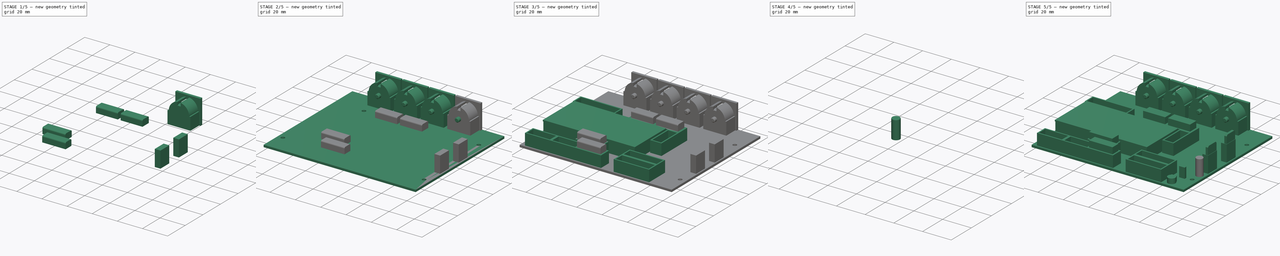
[diagram: build sequence overview — one tinted view per stage of 5, left to right]
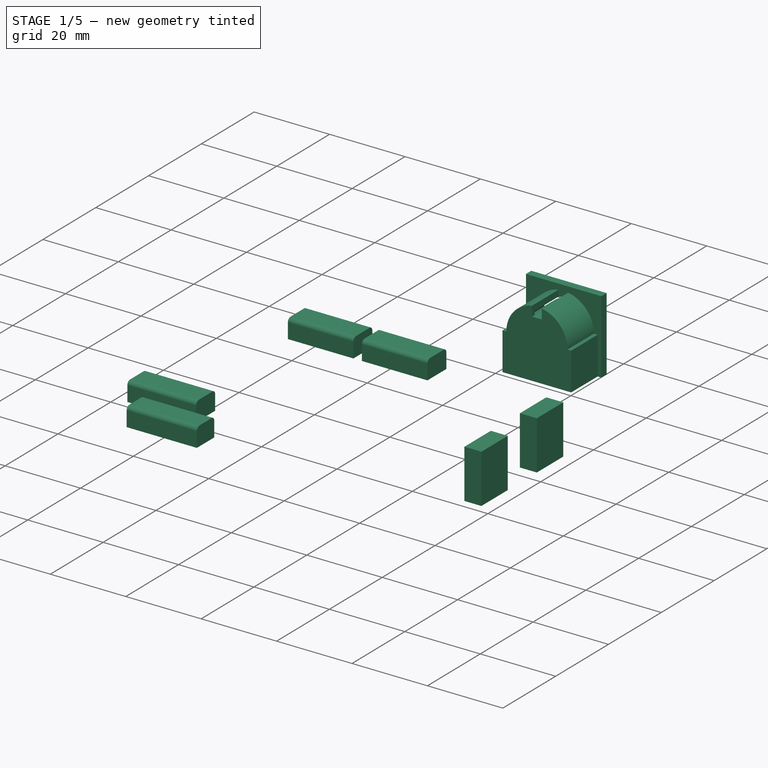
[diagram: stage 1 of 5 — iso view after this stage's code; geometry added in this stage tinted green]
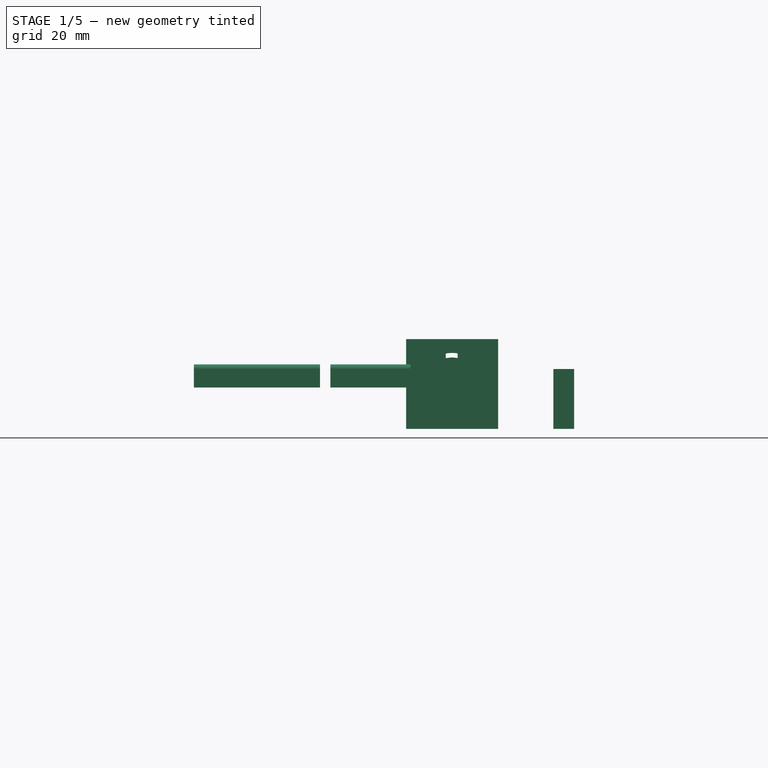
[diagram: stage 1 of 5 — front view after this stage's code; geometry added in this stage tinted green]
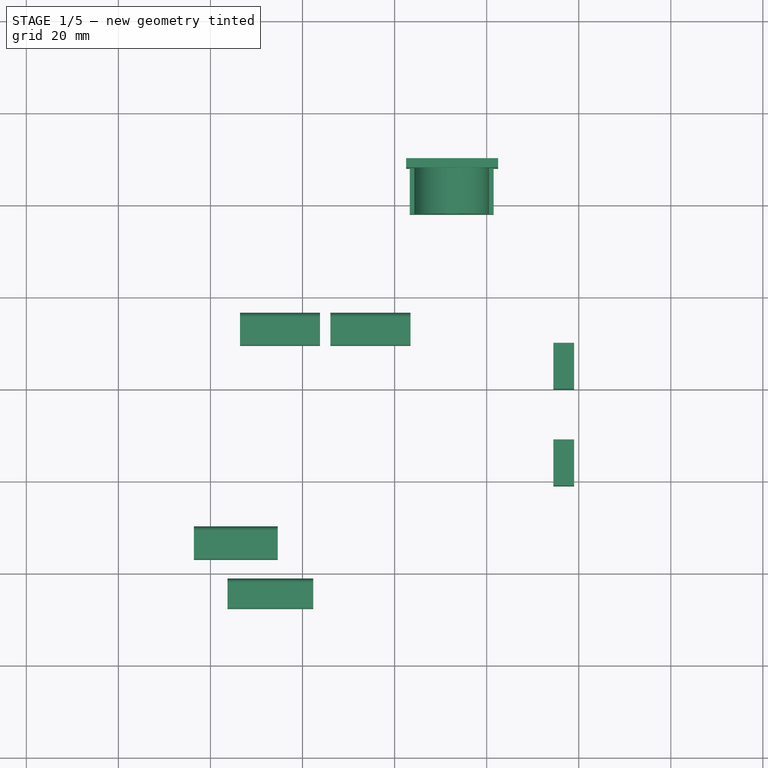
[diagram: stage 1 of 5 — top view after this stage's code; geometry added in this stage tinted green]
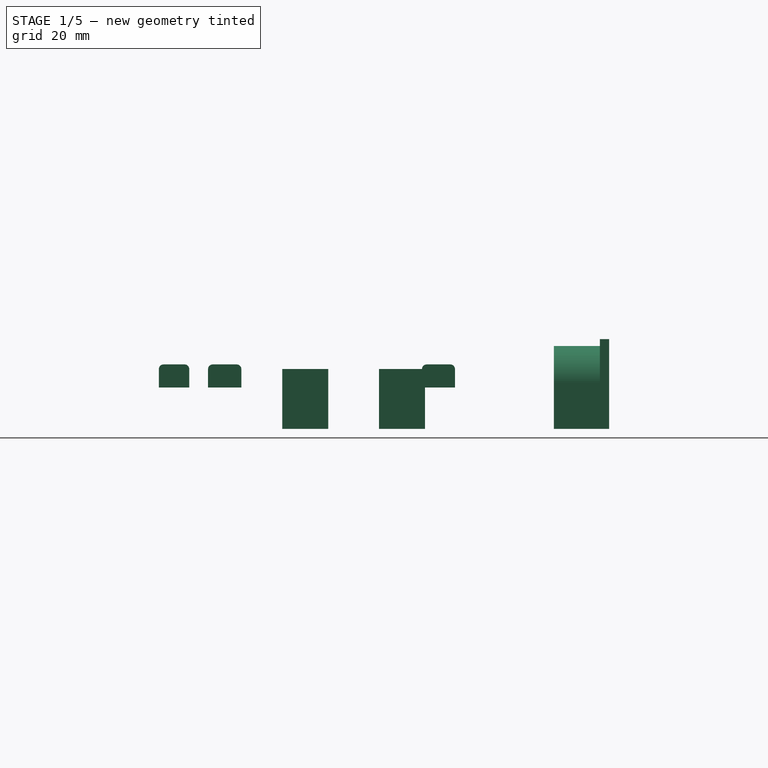
[diagram: stage 1 of 5 — right view after this stage's code; geometry added in this stage tinted green]
FCSTD DOCUMENT  (FreeCAD 0.18R15619 (Git))
Label: midibox
License: All rights reserved
LicenseURL: http://en.wikipedia.org/wiki/All_rights_reserved
objects: Sketcher::SketchObject×14, Part::Fuse×9, Part::Extrusion×8, PartDesign::Pad×5, PartDesign::Body×5, PartDesign::Pocket×2, PartDesign::ShapeBinder×2, PartDesign::Plane×2, Part::Fillet×2, PartDesign::Chamfer×1, Part::FeaturePython×1, Part::Chamfer×1
note: 59 computed .brp shape members not serialized (recipe doc carries the construction recipe); baked Part::Feature solids carry a one-line shape summary decoded from their .brp

FEATURE [PartDesign::Body] Body001  label="board"
  Group = -> [Sketch011,Pad010,Sketch012,Pocket001]
  Origin = -> Origin
  Tip = -> Pocket001
FEATURE [Sketcher::SketchObject] Sketch013
  MapMode = 5
  Support = -> [XY_Plane002]
  sketch-geometry (4):
    g0: LineSegment StartX=22.5 StartY=50 StartZ=0 EndX=42.5 EndY=50 EndZ=0
    g1: LineSegment StartX=42.5 StartY=50 StartZ=0 EndX=42.5 EndY=48 EndZ=0
    g2: LineSegment StartX=42.5 StartY=48 StartZ=0 EndX=22.5 EndY=48 EndZ=0
    g3: LineSegment StartX=22.5 StartY=48 StartZ=0 EndX=22.5 EndY=50 EndZ=0
  constraints (12):
    c: Coincident(g0,g1)
    c: Coincident(g1,g2)
    c: Coincident(g2,g3)
    c: Coincident(g3,g0)
    c: Horizontal(g0)
    c: Horizontal(g2)
    c: Vertical(g1)
    c: Vertical(g3)
    c: DistanceY(g-1,g0) = 50
    c: Distance(g0) = 20
    c: DistanceX(g-2,g0) = 42.5
    c: Distance(g3) = 2
FEATURE [PartDesign::Pad] Pad011
  Length = 19.5
  Length2 = 100
  Profile = -> Sketch013
  Type = 0
FEATURE [Sketcher::SketchObject] Sketch014
  ExternalGeometry = -> [Pad011]
  MapMode = 5
  Placement = pos=(0,48,0) rot=(1,0,0;1.5708rad)
  Support = -> [Pad011]
  sketch-geometry (10):
    g0: LineSegment StartX=41.5 StartY=0 StartZ=0 EndX=23.3 EndY=0 EndZ=0
    g1: LineSegment StartX=31.1 StartY=18 StartZ=0 EndX=31.1 EndY=15.4 EndZ=0
    g2: LineSegment StartX=31.1 StartY=15.4 StartZ=0 EndX=33.7 EndY=15.4 EndZ=0
    g3: LineSegment StartX=33.7 StartY=15.4 StartZ=0 EndX=33.7 EndY=18 EndZ=0
    g4: ArcOfCircle CenterX=32.4 CenterY=10.005 CenterZ=0 NormalX=0 NormalY=0 NormalZ=1 AngleXU=0 Radius=8.1 StartAngle=1.73199 EndAngle=3.14159
    g5: ArcOfCircle CenterX=32.4 CenterY=10.005 CenterZ=0 NormalX=0 NormalY=0 NormalZ=1 AngleXU=0 Radius=8.1 StartAngle=0 EndAngle=1.40961
    g6: LineSegment StartX=23.3 StartY=0 StartZ=0 EndX=23.3 EndY=10.005 EndZ=0
    g7: LineSegment StartX=23.3 StartY=10.005 StartZ=0 EndX=24.3 EndY=10.005 EndZ=0
    g8: LineSegment StartX=40.5 StartY=10.005 StartZ=0 EndX=41.5 EndY=10.005 EndZ=0
    g9: LineSegment StartX=41.5 StartY=10.005 StartZ=0 EndX=41.5 EndY=0 EndZ=0
  constraints (31):
    c: Horizontal(g0)
    c: PointOnObject(g0,g-1)
    c: Vertical(g1)
    c: Coincident(g1,g2)
    c: Horizontal(g2)
    c: Coincident(g2,g3)
    c: Coincident(g5,g3)
    c: Coincident(g4,g5)
    c: Coincident(g1,g4)
    c: Horizontal(g4,g4)
    c: Horizontal(g4,g5)
    c: Vertical(g3)
    c: Equal(g5,g4)
    c: Horizontal(g3,g1)
    c: Vertical(g6)
    c: Coincident(g6,g7)
    c: Coincident(g8,g9)
    c: Coincident(g5,g8)
    c: Coincident(g4,g7)
    c: Horizontal(g8)
    c: Horizontal(g7)
    c: Vertical(g9)
    c: Coincident(g0,g9)
    c: Coincident(g0,g6)
    c: Distance(g2) = 2.6
    c: Equal(g2,g3)
    c: Distance(g0) = 18.2
    c: Distance(g7) = 1
    c: Equal(g8,g7)
    c: Distance(g3,g-3) = 1.5
    c: Distance(g8,g-4) = 1
FEATURE [PartDesign::Pad] Pad012
  BaseFeature = -> Pad011
  Length = 10
  Length2 = 100
  Profile = -> Sketch014
  Type = 0
FEATURE [Sketcher::SketchObject] Sketch015
  ExternalGeometry = -> [Pad012]
  MapMode = 5
  Placement = pos=(0,50,0) rot=(0,0.707107,0.707107;3.14159rad)
  Support = -> [Pad012]
  sketch-geometry (4):
    g0: LineSegment [constr] StartX=-22.5 StartY=19.5 StartZ=0 EndX=-32.5 EndY=9.5 EndZ=0
    g1: LineSegment [constr] StartX=-32.5 StartY=9.5 StartZ=0 EndX=-42.5 EndY=19.5 EndZ=0
    g2: Circle CenterX=-32.5 CenterY=9.5 CenterZ=0 NormalX=0 NormalY=0 NormalZ=1 AngleXU=0 Radius=7
    g3: Circle CenterX=-32.5 CenterY=9.5 CenterZ=0 NormalX=0 NormalY=0 NormalZ=1 AngleXU=0 Radius=6
  constraints (9):
    c: Coincident(g0,g-3)
    c: Angle(g-3,g0) = 0.785398
    c: Coincident(g1,g0)
    c: Coincident(g1,g-3)
    c: Angle(g1,g-3) = 0.785398
    c: Coincident(g2,g0)
    c: Coincident(g3,g0)
    c: Radius(g2) = 7
    c: Radius(g3) = 6
FEATURE [PartDesign::Pocket] Pocket002
  BaseFeature = -> Pad012
  Length = 11
  Length2 = 100
  Profile = -> Sketch015
  Type = 0
FEATURE [PartDesign::ShapeBinder] CopyFusion002
  Placement = pos=(0,0,9) rot=(0,0,1;0rad)
  TraceSupport = false
FEATURE [PartDesign::Plane] DatumPlane001
  Length = 24
  MapMode = 5
  Placement = pos=(0,0,9) rot=(0,0,1;0rad)
  ResizeMode = 0
  Support = -> [CopyFusion002]
  Width = 24
FEATURE [Sketcher::SketchObject] Sketch019
  MapMode = 5
  Placement = pos=(0,0,9) rot=(0,0,1;0rad)
  Support = -> [DatumPlane001]
  sketch-geometry (16):
    g0: LineSegment StartX=-13.5794 StartY=16.512 StartZ=0 EndX=3.80866 EndY=16.512 EndZ=0
    g1: LineSegment StartX=3.80866 StartY=16.512 StartZ=0 EndX=3.80866 EndY=9.35732 EndZ=0
    g2: LineSegment StartX=3.80866 StartY=9.35732 StartZ=0 EndX=-13.5794 EndY=9.35732 EndZ=0
    g3: LineSegment StartX=-13.5794 StartY=9.35732 StartZ=0 EndX=-13.5794 EndY=16.512 EndZ=0
    g4: LineSegment StartX=6.05382 StartY=16.512 StartZ=0 EndX=23.4419 EndY=16.512 EndZ=0
    g5: LineSegment StartX=23.4419 StartY=16.512 StartZ=0 EndX=23.4419 EndY=9.35732 EndZ=0
    g6: LineSegment StartX=23.4419 StartY=9.35732 StartZ=0 EndX=6.05382 EndY=9.35732 EndZ=0
    g7: LineSegment StartX=6.05382 StartY=9.35732 StartZ=0 EndX=6.05382 EndY=16.512 EndZ=0
    g8: LineSegment StartX=-23.6037 StartY=-29.8951 StartZ=0 EndX=-5.3807 EndY=-29.8951 EndZ=0
    g9: LineSegment StartX=-5.3807 StartY=-29.8951 StartZ=0 EndX=-5.3807 EndY=-37.1215 EndZ=0
    g10: LineSegment StartX=-5.3807 StartY=-37.1215 StartZ=0 EndX=-23.6037 EndY=-37.1215 EndZ=0
    g11: LineSegment StartX=-23.6037 StartY=-37.1215 StartZ=0 EndX=-23.6037 EndY=-29.8951 EndZ=0
    g12: LineSegment StartX=-16.2988 StartY=-41.206 StartZ=0 EndX=2.31695 EndY=-41.206 EndZ=0
    g13: LineSegment StartX=2.31695 StartY=-41.206 StartZ=0 EndX=2.31695 EndY=-47.804 EndZ=0
    g14: LineSegment StartX=2.31695 StartY=-47.804 StartZ=0 EndX=-16.2988 EndY=-47.804 EndZ=0
    g15: LineSegment StartX=-16.2988 StartY=-47.804 StartZ=0 EndX=-16.2988 EndY=-41.206 EndZ=0
  constraints (35):
    c: Coincident(g0,g1)
    c: Coincident(g1,g2)
    c: Coincident(g2,g3)
    c: Coincident(g3,g0)
    c: Horizontal(g0)
    c: Horizontal(g2)
    c: Vertical(g1)
    c: Vertical(g3)
    c: Coincident(g4,g5)
    c: Coincident(g5,g6)
    c: Coincident(g6,g7)
    c: Coincident(g7,g4)
    c: Horizontal(g4)
    c: Horizontal(g6)
    c: Vertical(g5)
    c: Vertical(g7)
    c: Equal(g4,g0)
    c: Equal(g7,g1)
    c: Horizontal(g0,g4)
    c: Coincident(g8,g9)
    c: Coincident(g9,g10)
    c: Coincident(g10,g11)
    c: Coincident(g11,g8)
    c: Horizontal(g8)
    c: Horizontal(g10)
    c: Vertical(g9)
    c: Vertical(g11)
    c: Coincident(g12,g13)
    c: Coincident(g13,g14)
    c: Coincident(g14,g15)
    c: Coincident(g15,g12)
    c: Horizontal(g12)
    c: Horizontal(g14)
    c: Vertical(g13)
    c: Vertical(g15)
FEATURE [PartDesign::Body] Body005
  Group = -> [DatumPlane001,CopyFusion002,Sketch019]
  Origin = -> Origin005
FEATURE [Part::Extrusion] Extrude001
  Base = -> Sketch019
  Dir = (0,0,1)
  DirMode = 2
  FaceMakerClass = Part::FaceMakerBullseye
  LengthFwd = 5
  LengthRev = 0
  Solid = true
  Symmetric = false
FEATURE [Part::Fillet] Fillet  label="sockets-gray"
  Base = -> Extrude001
  Edges = 8 edges r=1: [Edge4,Edge10,Edge16,Edge22,Edge28,Edge34,Edge40,Edge46]
FEATURE [Sketcher::SketchObject] Sketch020
  sketch-geometry (8):
    g0: LineSegment StartX=54.5 StartY=10 StartZ=0 EndX=59 EndY=10 EndZ=0
    g1: LineSegment StartX=59 StartY=10 StartZ=0 EndX=59 EndY=0 EndZ=0
    g2: LineSegment StartX=59 StartY=0 StartZ=0 EndX=54.5 EndY=0 EndZ=0
    g3: LineSegment StartX=54.5 StartY=0 StartZ=0 EndX=54.5 EndY=10 EndZ=0
    g4: LineSegment StartX=54.5 StartY=-11 StartZ=0 EndX=59 EndY=-11 EndZ=0
    g5: LineSegment StartX=59 StartY=-11 StartZ=0 EndX=59 EndY=-21 EndZ=0
    g6: LineSegment StartX=59 StartY=-21 StartZ=0 EndX=54.5 EndY=-21 EndZ=0
    g7: LineSegment StartX=54.5 StartY=-21 StartZ=0 EndX=54.5 EndY=-11 EndZ=0
  constraints (24):
    c: Coincident(g0,g1)
    c: Coincident(g1,g2)
    c: Coincident(g2,g3)
    c: Coincident(g3,g0)
    c: Horizontal(g0)
    c: Horizontal(g2)
    c: Vertical(g1)
    c: Vertical(g3)
    c: Coincident(g4,g5)
    c: Coincident(g5,g6)
    c: Coincident(g6,g7)
    c: Coincident(g7,g4)
    c: Horizontal(g4)
    c: Horizontal(g6)
    c: Vertical(g5)
    c: Vertical(g7)
    c: DistanceY(g-1,g4) = -11
    c: PointOnObject(g1,g-1)
    c: Vertical(g1,g4)
    c: Equal(g1,g5)
    c: Equal(g0,g4)
    c: Distance(g1) = 10
    c: DistanceX(g-2,g1) = 59
    c: Distance(g0) = 4.5
FEATURE [Part::Extrusion] Extrude003  label="alim-black"
  Base = -> Sketch020
  Dir = (0,0,1)
  DirMode = 2
  FaceMakerClass = Part::FaceMakerBullseye
  LengthFwd = 13
  LengthRev = 0
  Solid = true
  Symmetric = false
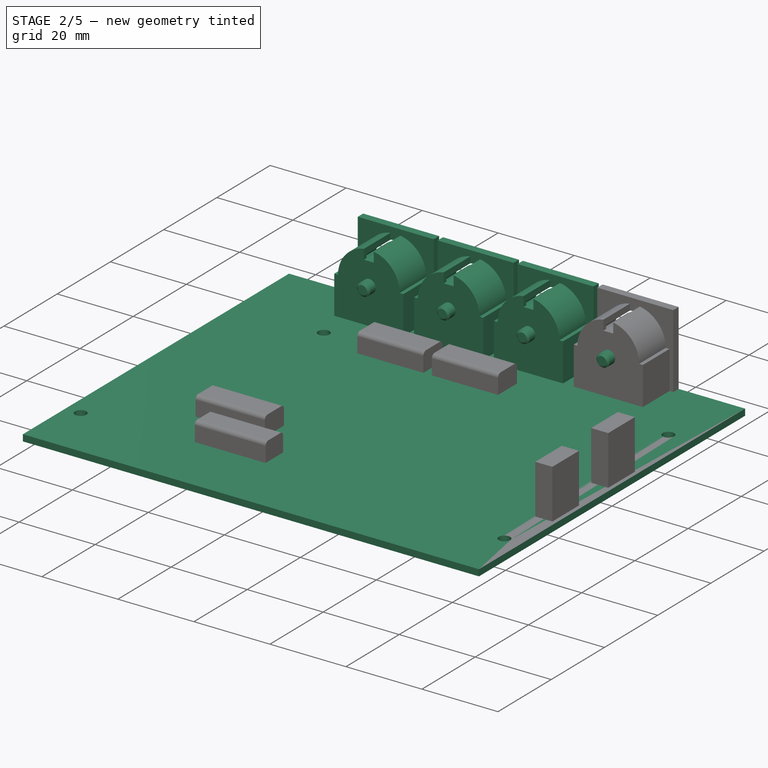
[diagram: stage 2 of 5 — iso view after this stage's code; geometry added in this stage tinted green]
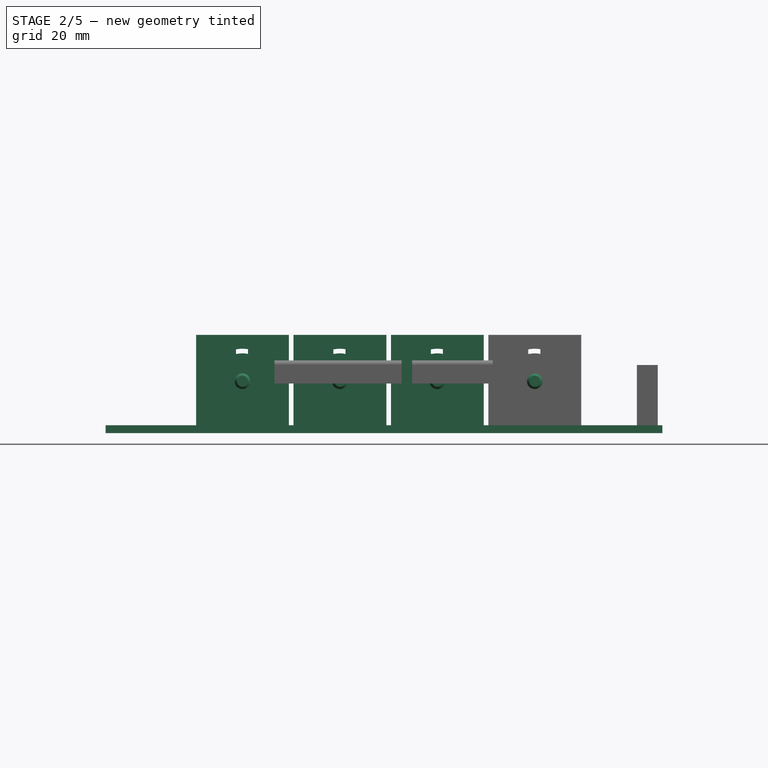
[diagram: stage 2 of 5 — front view after this stage's code; geometry added in this stage tinted green]
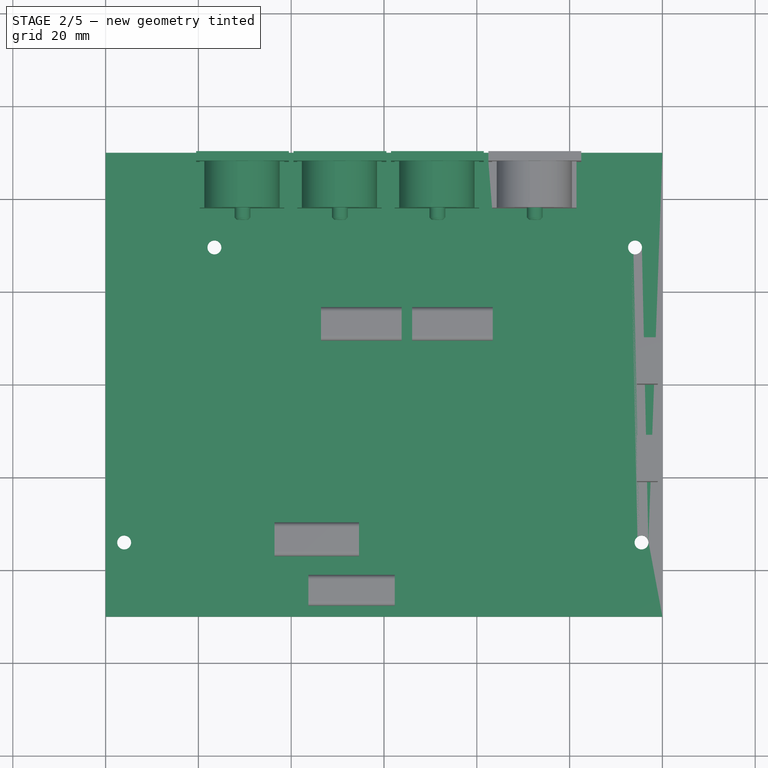
[diagram: stage 2 of 5 — top view after this stage's code; geometry added in this stage tinted green]
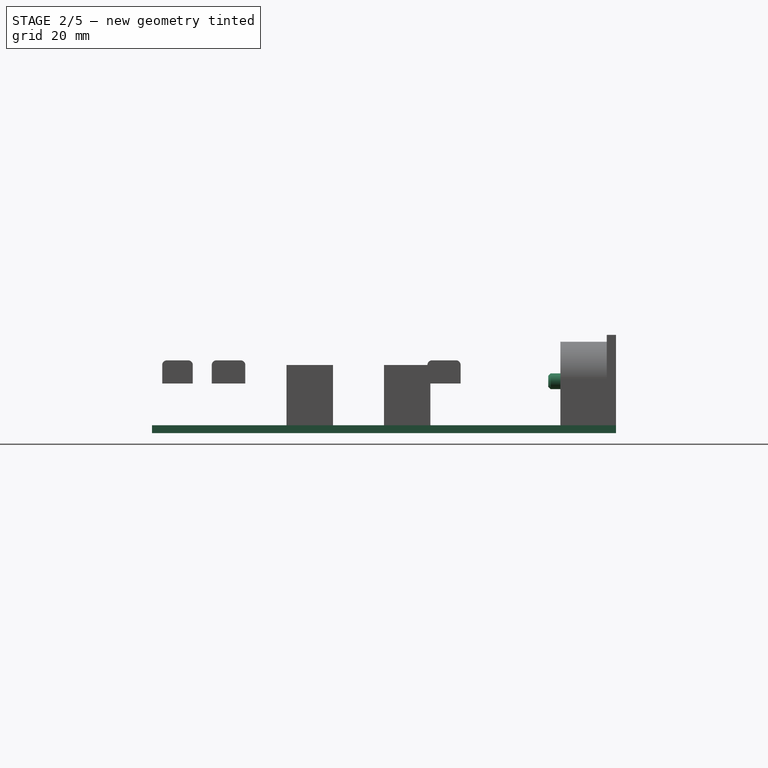
[diagram: stage 2 of 5 — right view after this stage's code; geometry added in this stage tinted green]
FEATURE [Sketcher::SketchObject] Sketch011
  MapMode = 5
  Support = -> [XY_Plane]
  sketch-geometry (4):
    g0: LineSegment StartX=-60 StartY=50 StartZ=0 EndX=60 EndY=50 EndZ=0
    g1: LineSegment StartX=60 StartY=50 StartZ=0 EndX=60 EndY=-50 EndZ=0
    g2: LineSegment StartX=60 StartY=-50 StartZ=0 EndX=-60 EndY=-50 EndZ=0
    g3: LineSegment StartX=-60 StartY=-50 StartZ=0 EndX=-60 EndY=50 EndZ=0
  constraints (12):
    c: Coincident(g0,g1)
    c: Coincident(g1,g2)
    c: Coincident(g2,g3)
    c: Coincident(g3,g0)
    c: Horizontal(g0)
    c: Horizontal(g2)
    c: Vertical(g1)
    c: Vertical(g3)
    c: Distance(g0) = 120
    c: Distance(g1) = 100
    c: DistanceX(g-2,g0) = 60
    c: DistanceY(g-1,g0) = 50
FEATURE [PartDesign::Pad] Pad010
  Length = 1.7
  Length2 = 100
  Profile = -> Sketch011
  Reversed = true
  Type = 0
FEATURE [Sketcher::SketchObject] Sketch012
  ExternalGeometry = -> [Pad010]
  MapMode = 5
  Support = -> [XY_Plane]
  sketch-geometry (4):
    g0: Circle CenterX=54.1 CenterY=29.6 CenterZ=0 NormalX=0 NormalY=0 NormalZ=1 AngleXU=0 Radius=1.5
    g1: Circle CenterX=-36.55 CenterY=29.6 CenterZ=0 NormalX=0 NormalY=0 NormalZ=1 AngleXU=0 Radius=1.5
    g2: Circle CenterX=-56 CenterY=-34 CenterZ=0 NormalX=0 NormalY=0 NormalZ=1 AngleXU=0 Radius=1.5
    g3: Circle CenterX=55.5 CenterY=-34 CenterZ=0 NormalX=0 NormalY=0 NormalZ=1 AngleXU=0 Radius=1.5
  constraints (12):
    c: Radius(g3) = 1.5
    c: Equal(g3,g0)
    c: Equal(g3,g1)
    c: Equal(g3,g2)
    c: Distance(g0,g-4) = 5.9
    c: Distance(g0,g-3) = 79.6
    c: Distance(g2,g-4) = 116
    c: Distance(g3,g-3) = 16
    c: Distance(g3,g-4) = 4.5
    c: Distance(g1,g-4) = 96.55
    c: Horizontal(g1,g0)
    c: Horizontal(g2,g3)
FEATURE [PartDesign::Pocket] Pocket001
  BaseFeature = -> Pad010
  Length = 5
  Length2 = 100
  Profile = -> Sketch012
  Type = 0
FEATURE [Sketcher::SketchObject] Sketch016
  ExternalGeometry = -> [Pocket002]
  MapMode = 5
  Placement = pos=(0,38,-9.5e-15) rot=(1,0,0;1.5708rad)
  Support = -> [Pocket002]
  sketch-geometry (1):
    g0: Circle CenterX=32.5 CenterY=9.5 CenterZ=0 NormalX=0 NormalY=0 NormalZ=1 AngleXU=0 Radius=1.7
  constraints (2):
    c: Coincident(g0,g-3)
    c: Radius(g0) = 1.7
FEATURE [PartDesign::Pad] Pad013
  BaseFeature = -> Pocket002
  Length = 2.6
  Length2 = 100
  Profile = -> Sketch016
  Type = 0
FEATURE [PartDesign::Chamfer] Chamfer001
  Base = -> Pad013 [Edge64]
  BaseFeature = -> Pad013
  Size = 0.5
FEATURE [PartDesign::Body] Body002  label="midi"
  Group = -> [Sketch013,Pad011,Sketch014,Pad012,Sketch015,Pocket002,Sketch016,Pad013,Chamfer001]
  Origin = -> Origin002
  Tip = -> Chamfer001
FEATURE [Part::FeaturePython] Array  label="midis"  # Draft array (typed FeaturePython)
  Angle = 360
  ArrayType = 0
  Axis = (0,0,1)
  Base = -> Body002
  Center = (0,0,0)
  Fuse = false
  IntervalAxis = (0,0,0)
  IntervalX = (-21,0,0)
  IntervalY = (0,1,0)
  IntervalZ = (0,0,0)
  NumberPolar = 1
  NumberX = 4
  NumberY = 1
  NumberZ = 1
FEATURE [PartDesign::Body] Body004  label="lpc"
  Group = -> [DatumPlane,CopyExtrude,Sketch018,Pad014]
  Origin = -> Origin004
  Tip = -> Pad014
FEATURE [Part::Fuse] Fusion  label="Fusion-board-midis"
  Base = -> Body001
  Tool = -> Array
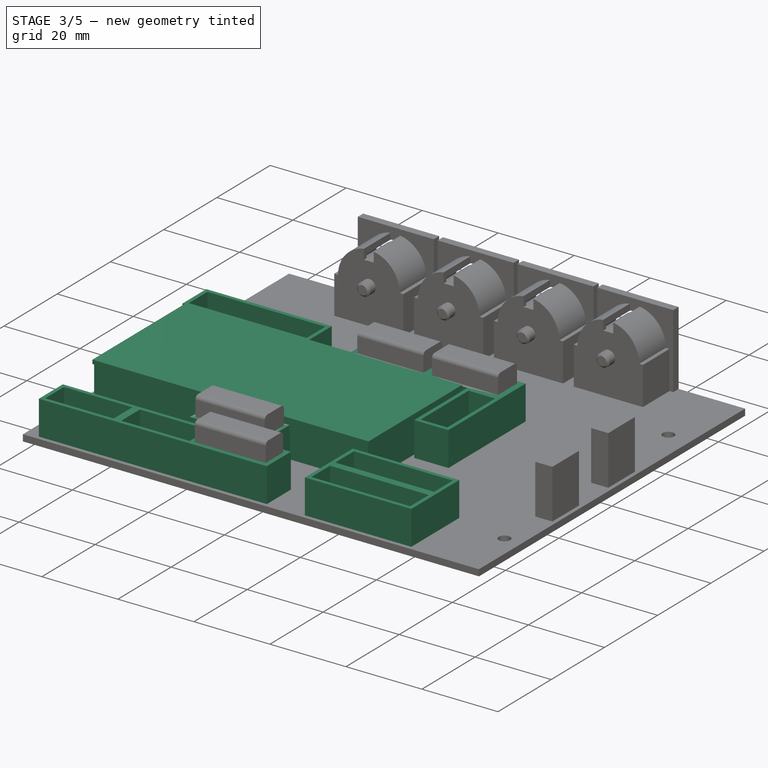
[diagram: stage 3 of 5 — iso view after this stage's code; geometry added in this stage tinted green]
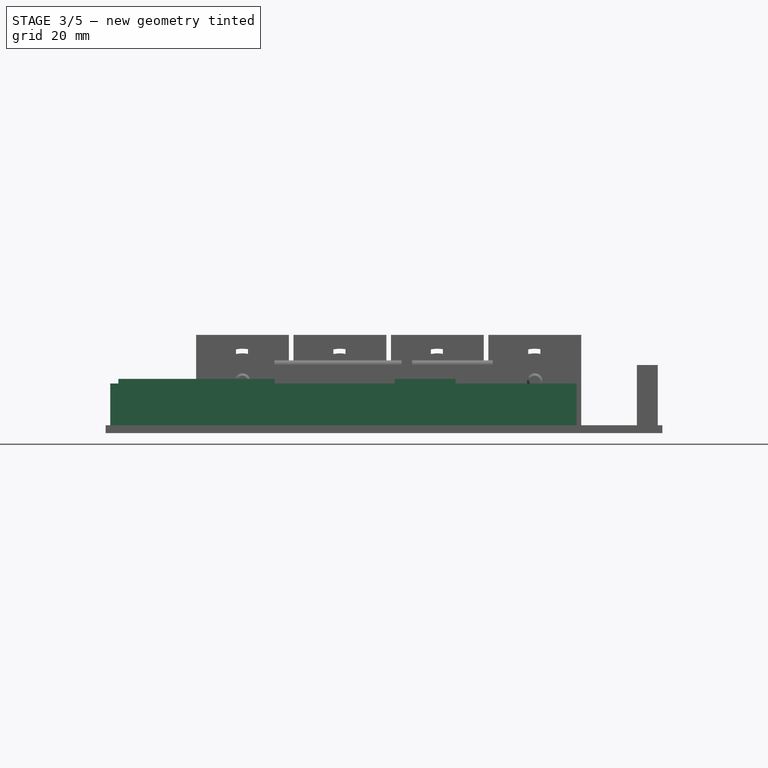
[diagram: stage 3 of 5 — front view after this stage's code; geometry added in this stage tinted green]
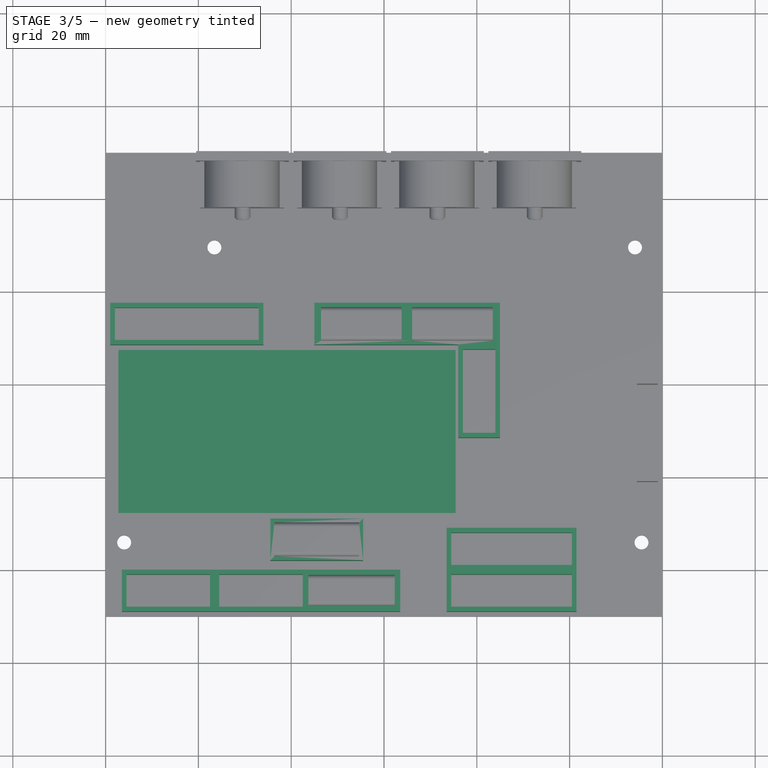
[diagram: stage 3 of 5 — top view after this stage's code; geometry added in this stage tinted green]
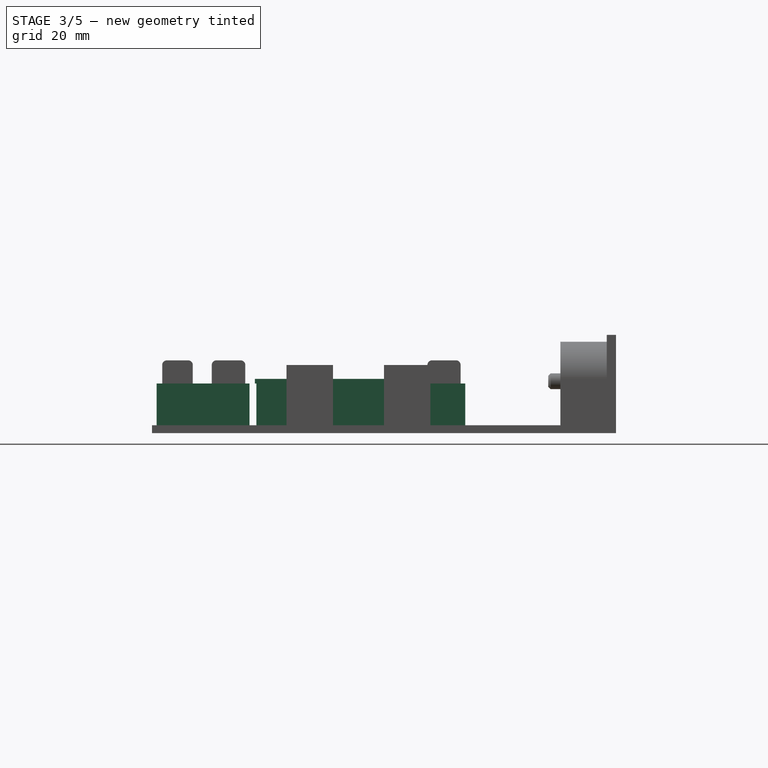
[diagram: stage 3 of 5 — right view after this stage's code; geometry added in this stage tinted green]
FEATURE [Sketcher::SketchObject] Sketch017
  MapMode = 5
  Support = -> [XY_Plane003]
  sketch-geometry (90):
    g0: LineSegment [constr] StartX=-59 StartY=17.5 StartZ=0 EndX=-26 EndY=17.5 EndZ=0
    g1: LineSegment [constr] StartX=-26 StartY=17.5 StartZ=0 EndX=-26 EndY=8.5 EndZ=0
    g2: LineSegment [constr] StartX=-26 StartY=8.5 StartZ=0 EndX=-59 EndY=8.5 EndZ=0
    g3: LineSegment [constr] StartX=-59 StartY=8.5 StartZ=0 EndX=-59 EndY=17.5 EndZ=0
    g4: LineSegment [constr] StartX=-15 StartY=17.5 StartZ=0 EndX=5 EndY=17.5 EndZ=0
    g5: LineSegment [constr] StartX=5 StartY=17.5 StartZ=0 EndX=5 EndY=8.5 EndZ=0
    g6: LineSegment [constr] StartX=5 StartY=8.5 StartZ=0 EndX=-15 EndY=8.5 EndZ=0
    g7: LineSegment [constr] StartX=-15 StartY=8.5 StartZ=0 EndX=-15 EndY=17.5 EndZ=0
    g8: LineSegment [constr] StartX=5 StartY=17.5 StartZ=0 EndX=25 EndY=17.5 EndZ=0
    g9: LineSegment [constr] StartX=25 StartY=17.5 StartZ=0 EndX=25 EndY=8.5 EndZ=0
    g10: LineSegment [constr] StartX=25 StartY=8.5 StartZ=0 EndX=5 EndY=8.5 EndZ=0
    g11: LineSegment [constr] StartX=5 StartY=8.5 StartZ=0 EndX=5 EndY=17.5 EndZ=0
    g12: LineSegment [constr] StartX=25 StartY=8.5 StartZ=0 EndX=16 EndY=8.5 EndZ=0
    g13: LineSegment [constr] StartX=16 StartY=8.5 StartZ=0 EndX=16 EndY=-11.5 EndZ=0
    g14: LineSegment [constr] StartX=16 StartY=-11.5 StartZ=0 EndX=25 EndY=-11.5 EndZ=0
    g15: LineSegment [constr] StartX=25 StartY=-11.5 StartZ=0 EndX=25 EndY=8.5 EndZ=0
    g16: LineSegment [constr] StartX=13.5 StartY=-31 StartZ=0 EndX=41.5 EndY=-31 EndZ=0
    g17: LineSegment [constr] StartX=41.5 StartY=-31 StartZ=0 EndX=41.5 EndY=-40 EndZ=0
    g18: LineSegment [constr] StartX=41.5 StartY=-40 StartZ=0 EndX=13.5 EndY=-40 EndZ=0
    g19: LineSegment [constr] StartX=13.5 StartY=-40 StartZ=0 EndX=13.5 EndY=-31 EndZ=0
    g20: LineSegment [constr] StartX=13.5 StartY=-40 StartZ=0 EndX=41.5 EndY=-40 EndZ=0
    g21: LineSegment [constr] StartX=41.5 StartY=-40 StartZ=0 EndX=41.5 EndY=-49 EndZ=0
    g22: LineSegment [constr] StartX=41.5 StartY=-49 StartZ=0 EndX=13.5 EndY=-49 EndZ=0
    g23: LineSegment [constr] StartX=13.5 StartY=-49 StartZ=0 EndX=13.5 EndY=-40 EndZ=0
    g24: LineSegment [constr] StartX=-24.5 StartY=-29 StartZ=0 EndX=-4.5 EndY=-29 EndZ=0
    g25: LineSegment [constr] StartX=-4.5 StartY=-29 StartZ=0 EndX=-4.5 EndY=-38 EndZ=0
    g26: LineSegment [constr] StartX=-4.5 StartY=-38 StartZ=0 EndX=-24.5 EndY=-38 EndZ=0
    g27: LineSegment [constr] StartX=-24.5 StartY=-38 StartZ=0 EndX=-24.5 EndY=-29 EndZ=0
    g28: LineSegment [constr] StartX=-56.5 StartY=-40 StartZ=0 EndX=-36.5 EndY=-40 EndZ=0
    g29: LineSegment [constr] StartX=-36.5 StartY=-40 StartZ=0 EndX=-36.5 EndY=-49 EndZ=0
    g30: LineSegment [constr] StartX=-36.5 StartY=-49 StartZ=0 EndX=-56.5 EndY=-49 EndZ=0
    g31: LineSegment [constr] StartX=-56.5 StartY=-49 StartZ=0 EndX=-56.5 EndY=-40 EndZ=0
    g32: LineSegment [constr] StartX=-36.5 StartY=-40 StartZ=0 EndX=-16.5 EndY=-40 EndZ=0
    g33: LineSegment [constr] StartX=-16.5 StartY=-40 StartZ=0 EndX=-16.5 EndY=-49 EndZ=0
    g34: LineSegment [constr] StartX=-16.5 StartY=-49 StartZ=0 EndX=-36.5 EndY=-49 EndZ=0
    g35: LineSegment [constr] StartX=-36.5 StartY=-49 StartZ=0 EndX=-36.5 EndY=-40 EndZ=0
    g36: LineSegment [constr] StartX=-16.5 StartY=-40 StartZ=0 EndX=3.5 EndY=-40 EndZ=0
    g37: LineSegment [constr] StartX=3.5 StartY=-40 StartZ=0 EndX=3.5 EndY=-49 EndZ=0
    g38: LineSegment [constr] StartX=3.5 StartY=-49 StartZ=0 EndX=-16.5 EndY=-49 EndZ=0
    g39: LineSegment [constr] StartX=-16.5 StartY=-49 StartZ=0 EndX=-16.5 EndY=-40 EndZ=0
    g40: LineSegment StartX=-59 StartY=17.5 StartZ=0 EndX=-26 EndY=17.5 EndZ=0
    g41: LineSegment StartX=-26 StartY=17.5 StartZ=0 EndX=-26 EndY=8.5 EndZ=0
    g42: LineSegment StartX=-26 StartY=8.5 StartZ=0 EndX=-59 EndY=8.5 EndZ=0
    g43: LineSegment StartX=-59 StartY=8.5 StartZ=0 EndX=-59 EndY=17.5 EndZ=0
    g44: LineSegment StartX=-15 StartY=8.5 StartZ=0 EndX=-15 EndY=17.5 EndZ=0
    g45: LineSegment StartX=-15 StartY=17.5 StartZ=0 EndX=25 EndY=17.5 EndZ=0
    g46: LineSegment StartX=25 StartY=17.5 StartZ=0 EndX=25 EndY=-11.5 EndZ=0
    g47: LineSegment StartX=25 StartY=-11.5 StartZ=0 EndX=16 EndY=-11.5 EndZ=0
    g48: LineSegment StartX=16 StartY=-11.5 StartZ=0 EndX=16 EndY=8.5 EndZ=0
    g49: LineSegment StartX=16 StartY=8.5 StartZ=0 EndX=-15 EndY=8.5 EndZ=0
    g50: LineSegment StartX=-58 StartY=16.5 StartZ=0 EndX=-27 EndY=16.5 EndZ=0
    g51: LineSegment StartX=-27 StartY=16.5 StartZ=0 EndX=-27 EndY=9.5 EndZ=0
    g52: LineSegment StartX=-27 StartY=9.5 StartZ=0 EndX=-58 EndY=9.5 EndZ=0
    g53: LineSegment StartX=-58 StartY=9.5 StartZ=0 EndX=-58 EndY=16.5 EndZ=0
    g54: LineSegment StartX=17 StartY=7.5 StartZ=0 EndX=24 EndY=7.5 EndZ=0
    g55: LineSegment StartX=24 StartY=7.5 StartZ=0 EndX=24 EndY=-10.5 EndZ=0
    g56: LineSegment StartX=24 StartY=-10.5 StartZ=0 EndX=17 EndY=-10.5 EndZ=0
    g57: LineSegment StartX=17 StartY=-10.5 StartZ=0 EndX=17 EndY=7.5 EndZ=0
    g58: LineSegment StartX=-56.5 StartY=-40 StartZ=0 EndX=3.5 EndY=-40 EndZ=0
    g59: LineSegment StartX=3.5 StartY=-40 StartZ=0 EndX=3.5 EndY=-49 EndZ=0
    g60: LineSegment StartX=3.5 StartY=-49 StartZ=0 EndX=-56.5 EndY=-49 EndZ=0
    g61: LineSegment StartX=-56.5 StartY=-49 StartZ=0 EndX=-56.5 EndY=-40 EndZ=0
    g62: LineSegment StartX=-24.5 StartY=-29 StartZ=0 EndX=-4.5 EndY=-29 EndZ=0
    g63: LineSegment StartX=-4.5 StartY=-29 StartZ=0 EndX=-4.5 EndY=-38 EndZ=0
    g64: LineSegment StartX=-4.5 StartY=-38 StartZ=0 EndX=-24.5 EndY=-38 EndZ=0
    g65: LineSegment StartX=-24.5 StartY=-38 StartZ=0 EndX=-24.5 EndY=-29 EndZ=0
    g66: LineSegment StartX=13.5 StartY=-31 StartZ=0 EndX=41.5 EndY=-31 EndZ=0
    g67: LineSegment StartX=41.5 StartY=-31 StartZ=0 EndX=41.5 EndY=-49 EndZ=0
    g68: LineSegment StartX=41.5 StartY=-49 StartZ=0 EndX=13.5 EndY=-49 EndZ=0
    g69: LineSegment StartX=13.5 StartY=-49 StartZ=0 EndX=13.5 EndY=-31 EndZ=0
    g70: LineSegment StartX=-55.5 StartY=-41 StartZ=0 EndX=-37.5 EndY=-41 EndZ=0
    g71: LineSegment StartX=-37.5 StartY=-41 StartZ=0 EndX=-37.5 EndY=-48 EndZ=0
    g72: LineSegment StartX=-37.5 StartY=-48 StartZ=0 EndX=-55.5 EndY=-48 EndZ=0
    g73: LineSegment StartX=-55.5 StartY=-48 StartZ=0 EndX=-55.5 EndY=-41 EndZ=0
    g74: LineSegment StartX=-35.5 StartY=-41 StartZ=0 EndX=-17.5 EndY=-41 EndZ=0
    g75: LineSegment StartX=-17.5 StartY=-41 StartZ=0 EndX=-17.5 EndY=-48 EndZ=0
    g76: LineSegment StartX=-17.5 StartY=-48 StartZ=0 EndX=-35.5 EndY=-48 EndZ=0
    g77: LineSegment StartX=-35.5 StartY=-48 StartZ=0 EndX=-35.5 EndY=-41 EndZ=0
    g78: LineSegment StartX=14.5 StartY=-32 StartZ=0 EndX=40.5 EndY=-32 EndZ=0
    g79: LineSegment StartX=40.5 StartY=-32 StartZ=0 EndX=40.5 EndY=-39 EndZ=0
    g80: LineSegment StartX=40.5 StartY=-39 StartZ=0 EndX=14.5 EndY=-39 EndZ=0
    g81: LineSegment StartX=14.5 StartY=-39 StartZ=0 EndX=14.5 EndY=-32 EndZ=0
    g82: LineSegment StartX=14.5 StartY=-41 StartZ=0 EndX=40.5 EndY=-41 EndZ=0
    g83: LineSegment StartX=40.5 StartY=-41 StartZ=0 EndX=40.5 EndY=-48 EndZ=0
    g84: LineSegment StartX=40.5 StartY=-48 StartZ=0 EndX=14.5 EndY=-48 EndZ=0
    g85: LineSegment StartX=14.5 StartY=-48 StartZ=0 EndX=14.5 EndY=-41 EndZ=0
    g86: LineSegment StartX=-57 StartY=7.1 StartZ=0 EndX=15 EndY=7.1 EndZ=0
    g87: LineSegment StartX=15 StartY=7.1 StartZ=0 EndX=15 EndY=-27.5 EndZ=0
    g88: LineSegment StartX=15 StartY=-27.5 StartZ=0 EndX=-57 EndY=-27.5 EndZ=0
    g89: LineSegment StartX=-57 StartY=-27.5 StartZ=0 EndX=-57 EndY=7.1 EndZ=0
  constraints (243):
    c: Coincident(g0,g1)
    c: Coincident(g1,g2)
    c: Coincident(g2,g3)
    c: Coincident(g3,g0)
    c: Horizontal(g0)
    c: Horizontal(g2)
    c: Vertical(g1)
    c: Vertical(g3)
    c: Coincident(g4,g5)
    c: Coincident(g5,g6)
    c: Coincident(g6,g7)
    c: Coincident(g7,g4)
    c: Horizontal(g4)
    c: Horizontal(g6)
    c: Vertical(g5)
    c: Vertical(g7)
    c: Coincident(g8,g9)
    c: Coincident(g9,g10)
    c: Coincident(g10,g11)
    c: Coincident(g11,g8)
    c: Horizontal(g8)
    c: Horizontal(g10)
    c: Vertical(g9)
    c: Vertical(g11)
    c: Coincident(g12,g13)
    c: Coincident(g13,g14)
    c: Coincident(g14,g15)
    c: Coincident(g15,g12)
    c: Horizontal(g12)
    c: Horizontal(g14)
    c: Vertical(g13)
    c: Vertical(g15)
    c: Coincident(g16,g17)
    c: Coincident(g17,g18)
    c: Coincident(g18,g19)
    c: Coincident(g19,g16)
    c: Horizontal(g16)
    c: Horizontal(g18)
    c: Vertical(g17)
    c: Vertical(g19)
    c: Coincident(g20,g21)
    c: Coincident(g21,g22)
    c: Coincident(g22,g23)
    c: Coincident(g23,g20)
    c: Horizontal(g20)
    c: Horizontal(g22)
    c: Vertical(g21)
    c: Vertical(g23)
    c: Coincident(g24,g25)
    c: Coincident(g25,g26)
    c: Coincident(g26,g27)
    c: Coincident(g27,g24)
    c: Horizontal(g24)
    c: Horizontal(g26)
    c: Vertical(g25)
    c: Vertical(g27)
    c: Coincident(g28,g29)
    c: Coincident(g29,g30)
    c: Coincident(g30,g31)
    c: Coincident(g31,g28)
    c: Horizontal(g28)
    c: Horizontal(g30)
    c: Vertical(g29)
    c: Vertical(g31)
    c: Coincident(g32,g33)
    c: Coincident(g33,g34)
    c: Coincident(g34,g35)
    c: Coincident(g35,g32)
    c: Horizontal(g32)
    c: Horizontal(g34)
    c: Vertical(g33)
    c: Vertical(g35)
    c: Coincident(g36,g37)
    c: Coincident(g37,g38)
    c: Coincident(g38,g39)
    c: Coincident(g39,g36)
    c: Horizontal(g36)
    c: Horizontal(g38)
    c: Vertical(g37)
    c: Vertical(g39)
    c: Equal(g9,g12)
    c: Equal(g12,g5)
    c: Equal(g5,g1)
    c: Equal(g1,g25)
    c: Equal(g25,g29)
    c: Equal(g29,g33)
    c: Equal(g33,g37)
    c: Equal(g37,g17)
    c: Equal(g17,g21)
    c: Distance(g21) = 9
    c: Equal(g16,g20)
    c: Distance(g16) = 28
    c: Coincident(g18,g20)
    c: Equal(g4,g8)
    c: Equal(g8,g15)
    c: Equal(g15,g24)
    c: Equal(g24,g36)
    c: Equal(g36,g32)
    c: Equal(g32,g28)
    c: Distance(g36) = 20
    c: Coincident(g9,g12)
    c: Coincident(g4,g8)
    c: Coincident(g28,g32)
    c: Coincident(g32,g36)
    c: DistanceX(g-2,g8) = 25
    c: DistanceY(g-1,g5) = 8.5
    c: Horizontal(g0,g4)
    c: DistanceX(g-2,g0) = -59
    c: Distance(g0) = 33
    c: DistanceY(g-1,g21) = -49
    c: Horizontal(g22,g37)
    c: DistanceX(g-2,g21) = 41.5
    c: Distance(g37,g22) = 10
    c: DistanceX(g25,g36) = 8
    c: Distance(g25,g36) = 2
    c: Coincident(g40,g41)
    c: Coincident(g41,g42)
    c: Coincident(g42,g43)
    c: Coincident(g43,g40)
    c: Coincident(g40,g0)
    c: Coincident(g45,g8)
    c: Coincident(g45,g46)
    c: Coincident(g46,g14)
    c: Coincident(g46,g47)
    c: Coincident(g47,g13)
    c: Coincident(g47,g48)
    c: Coincident(g48,g12)
    c: Coincident(g48,g49)
    c: Coincident(g49,g6)
    c: Coincident(g4,g44)
    c: Coincident(g4,g45)
    c: Coincident(g6,g44)
    c: Coincident(g0,g40)
    c: Coincident(g1,g41)
    c: Coincident(g2,g42)
    c: Coincident(g50,g51)
    c: Coincident(g51,g52)
    c: Coincident(g52,g53)
    c: Coincident(g53,g50)
    c: Horizontal(g50)
    c: Horizontal(g52)
    c: Vertical(g51)
    c: Vertical(g53)
    c: Coincident(g54,g55)
    c: Coincident(g55,g56)
    c: Coincident(g56,g57)
    c: Coincident(g57,g54)
    c: Horizontal(g54)
    c: Horizontal(g56)
    c: Vertical(g55)
    c: Vertical(g57)
    c: Distance(g54,g10) = 1
    c: Distance(g54,g48) = 1
    c: Distance(g55,g47) = 1
    c: Distance(g55,g46) = 1
    c: Distance(g50,g40) = 1
    c: Distance(g50,g43) = 1
    c: Distance(g51,g42) = 1
    c: Distance(g51,g41) = 1
    c: Coincident(g28,g58)
    c: Coincident(g58,g36)
    c: Coincident(g58,g59)
    c: Coincident(g59,g37)
    c: Coincident(g59,g60)
    c: Coincident(g60,g30)
    c: Coincident(g60,g61)
    c: Coincident(g61,g58)
    c: Coincident(g62,g63)
    c: Coincident(g63,g64)
    c: Coincident(g64,g65)
    c: Coincident(g66,g67)
    c: Coincident(g67,g68)
    c: Coincident(g68,g69)
    c: Coincident(g62,g65)
    c: Coincident(g62,g24)
    c: Coincident(g24,g62)
    c: Coincident(g26,g64)
    c: Coincident(g25,g63)
    c: Coincident(g16,g66)
    c: Coincident(g16,g69)
    c: Coincident(g22,g68)
    c: Coincident(g21,g67)
    c: Coincident(g16,g66)
    c: Coincident(g70,g71)
    c: Coincident(g71,g72)
    c: Coincident(g72,g73)
    c: Coincident(g73,g70)
    c: Horizontal(g70)
    c: Horizontal(g72)
    c: Vertical(g71)
    c: Vertical(g73)
    c: Coincident(g74,g75)
    c: Coincident(g75,g76)
    c: Coincident(g76,g77)
    c: Coincident(g77,g74)
    c: Horizontal(g74)
    c: Horizontal(g76)
    c: Vertical(g75)
    c: Vertical(g77)
    c: Coincident(g78,g79)
    c: Coincident(g79,g80)
    c: Coincident(g80,g81)
    c: Coincident(g81,g78)
    c: Horizontal(g78)
    c: Horizontal(g80)
    c: Vertical(g79)
    c: Vertical(g81)
    c: Coincident(g82,g83)
    c: Coincident(g83,g84)
    c: Coincident(g84,g85)
    c: Coincident(g85,g82)
    c: Horizontal(g82)
    c: Horizontal(g84)
    c: Vertical(g83)
    c: Vertical(g85)
    c: Distance(g78,g66) = 1
    c: Distance(g17,g80) = 1
    c: Distance(g82,g18) = 1
    c: Distance(g82,g67) = 1
    c: Distance(g84,g68) = 1
    c: Distance(g84,g69) = 1
    c: Distance(g75,g60) = 1
    c: Distance(g75,g33) = 1
    c: Distance(g74,g58) = 1
    c: Distance(g74,g29) = 1
    c: Distance(g70,g58) = 1
    c: Distance(g70,g61) = 1
    c: Distance(g71,g60) = 1
    c: Distance(g70,g29) = 1
    c: Vertical(g82,g79)
    c: Vertical(g80,g82)
    c: Coincident(g86,g87)
    c: Coincident(g87,g88)
    c: Coincident(g88,g89)
    c: Coincident(g89,g86)
    c: Horizontal(g86)
    c: Horizontal(g88)
    c: Vertical(g87)
    c: Vertical(g89)
    c: Distance(g86) = 72
    c: Distance(g89) = 34.6
    c: DistanceX(g-2,g88) = -57
    c: DistanceY(g-1,g87) = -27.5
FEATURE [Part::Extrusion] Extrude
  Base = -> Sketch017
  Dir = (0,0,1)
  DirMode = 0
  FaceMakerClass = Part::FaceMakerBullseye
  LengthFwd = 9
  LengthRev = 0
  Solid = true
  Symmetric = false
FEATURE [PartDesign::Body] Body003  label="sockets"
  Group = -> [Sketch017]
  Origin = -> Origin003
FEATURE [PartDesign::ShapeBinder] CopyExtrude
  Placement = pos=(0,0,9) rot=(0,0,1;0rad)
  TraceSupport = false
FEATURE [PartDesign::Plane] DatumPlane
  Length = 24
  MapMode = 5
  Placement = pos=(0,0,9) rot=(0,0,1;0rad)
  ResizeMode = 0
  Support = -> [CopyExtrude]
  Width = 24
FEATURE [Sketcher::SketchObject] Sketch018
  MapMode = 5
  Placement = pos=(0,0,9) rot=(0,0,1;0rad)
  Support = -> [DatumPlane]
  sketch-geometry (4):
    g0: LineSegment StartX=-57.2469 StartY=7.31045 StartZ=0 EndX=15.424 EndY=7.31045 EndZ=0
    g1: LineSegment StartX=15.424 StartY=7.31045 StartZ=0 EndX=15.424 EndY=-27.8157 EndZ=0
    g2: LineSegment StartX=15.424 StartY=-27.8157 StartZ=0 EndX=-57.2469 EndY=-27.8157 EndZ=0
    g3: LineSegment StartX=-57.2469 StartY=-27.8157 StartZ=0 EndX=-57.2469 EndY=7.31045 EndZ=0
  constraints (8):
    c: Coincident(g0,g1)
    c: Coincident(g1,g2)
    c: Coincident(g2,g3)
    c: Coincident(g3,g0)
    c: Horizontal(g0)
    c: Horizontal(g2)
    c: Vertical(g1)
    c: Vertical(g3)
FEATURE [PartDesign::Pad] Pad014
  Length = 1
  Length2 = 100
  Placement = pos=(0,0,9) rot=(0,0,1;0rad)
  Profile = -> Sketch018
  Type = 0
FEATURE [Part::Fuse] Fusion001  label="Fusion-sockets"
  Base = -> Fusion
  Tool = -> Extrude
FEATURE [Part::Fuse] Fusion002  label="Fusion-lpc"
  Base = -> Fusion001
  Tool = -> Body004
FEATURE [Part::Fuse] Fusion003  label="Fusion-socket-gray"
  Base = -> Fusion002
  Tool = -> Fillet
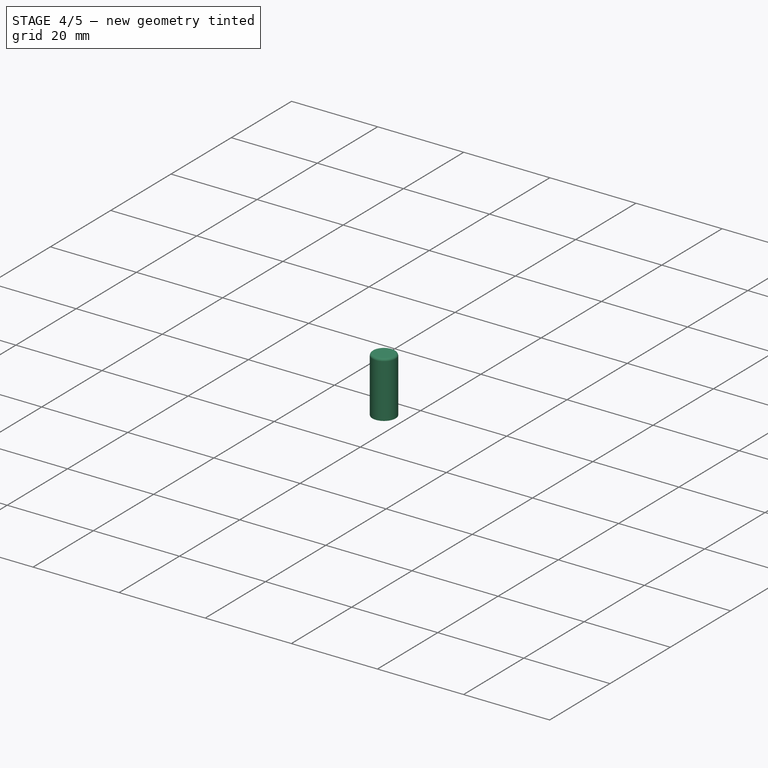
[diagram: stage 4 of 5 — iso view after this stage's code; geometry added in this stage tinted green]
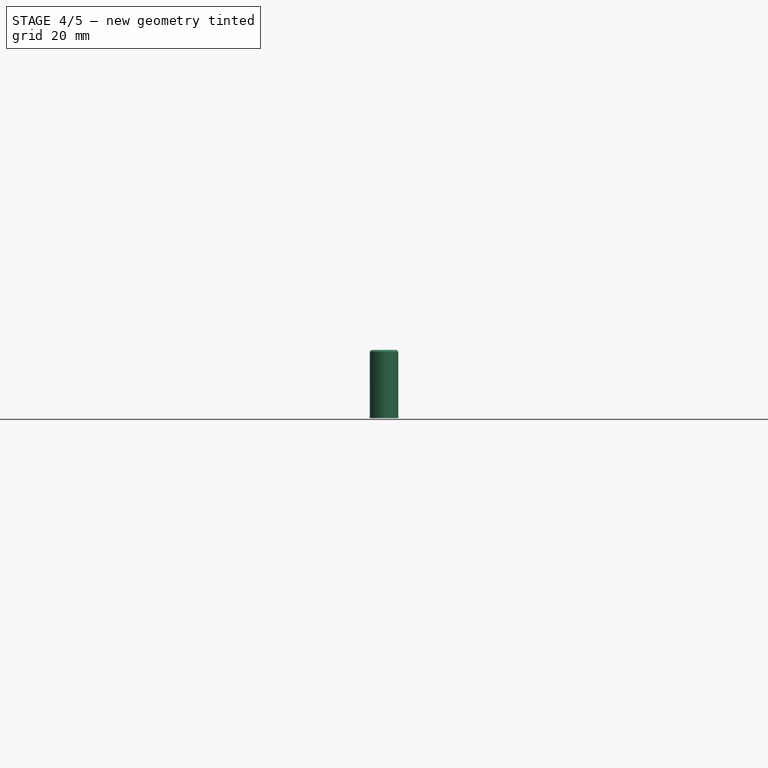
[diagram: stage 4 of 5 — front view after this stage's code; geometry added in this stage tinted green]
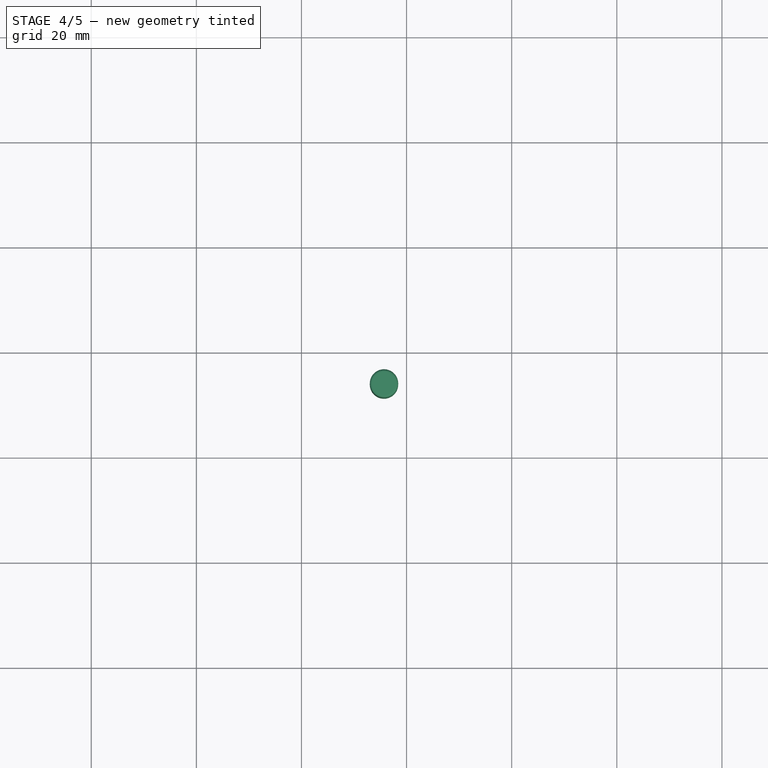
[diagram: stage 4 of 5 — top view after this stage's code; geometry added in this stage tinted green]
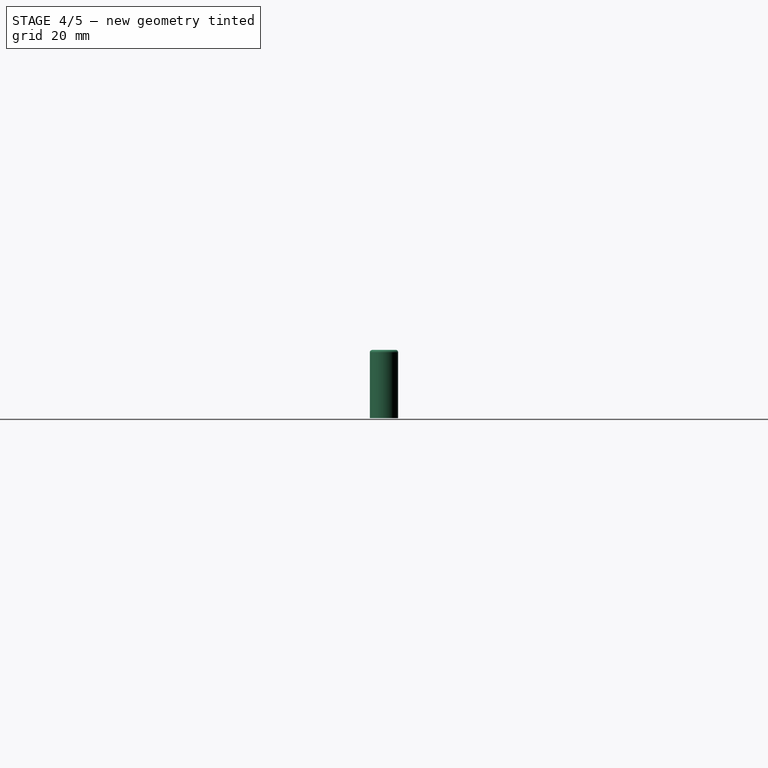
[diagram: stage 4 of 5 — right view after this stage's code; geometry added in this stage tinted green]
FEATURE [Sketcher::SketchObject] Sketch021
  MapMode = 5
  Placement = pos=(0,0,13) rot=(0,0,1;0rad)
  Support = -> [Extrude003]
  sketch-geometry (8):
    g0: LineSegment StartX=58.7754 StartY=9.76702 StartZ=0 EndX=56.9213 EndY=9.76702 EndZ=0
    g1: LineSegment StartX=56.9213 StartY=9.76702 StartZ=0 EndX=56.9213 EndY=0.252769 EndZ=0
    g2: LineSegment StartX=56.9213 StartY=0.252769 StartZ=0 EndX=58.7754 EndY=0.252769 EndZ=0
    g3: LineSegment StartX=58.7754 StartY=0.252769 StartZ=0 EndX=58.7754 EndY=9.76702 EndZ=0
    g4: LineSegment StartX=58.7754 StartY=-11.1958 StartZ=0 EndX=56.9213 EndY=-11.1958 EndZ=0
    g5: LineSegment StartX=56.9213 StartY=-11.1958 StartZ=0 EndX=56.9213 EndY=-20.8475 EndZ=0
    g6: LineSegment StartX=56.9213 StartY=-20.8475 StartZ=0 EndX=58.7754 EndY=-20.8475 EndZ=0
    g7: LineSegment StartX=58.7754 StartY=-20.8475 StartZ=0 EndX=58.7754 EndY=-11.1958 EndZ=0
  constraints (18):
    c: Coincident(g0,g1)
    c: Coincident(g1,g2)
    c: Coincident(g2,g3)
    c: Coincident(g3,g0)
    c: Horizontal(g0)
    c: Horizontal(g2)
    c: Vertical(g1)
    c: Vertical(g3)
    c: Coincident(g4,g5)
    c: Coincident(g5,g6)
    c: Coincident(g6,g7)
    c: Coincident(g7,g4)
    c: Horizontal(g4)
    c: Horizontal(g6)
    c: Vertical(g5)
    c: Vertical(g7)
    c: Equal(g4,g2)
    c: Vertical(g2,g4)
FEATURE [Part::Extrusion] Extrude004
  Base = -> Sketch021
  Dir = (0,0,1)
  DirMode = 2
  FaceMakerClass = Part::FaceMakerBullseye
  LengthFwd = 6.5
  LengthRev = 0
  Solid = true
  Symmetric = false
FEATURE [Part::Chamfer] Chamfer002  label="alim-grey"
  Base = -> Extrude004
  Edges = 4 edges r=1: [Edge4,Edge10,Edge16,Edge22]
FEATURE [Part::Fuse] Fusion004  label="Fusion-alim-black"
  Base = -> Fusion003
  Tool = -> Extrude003
FEATURE [Part::Fuse] Fusion005  label="Fusion-alim-grey"
  Base = -> Fusion004
  Tool = -> Chamfer002
FEATURE [Sketcher::SketchObject] Sketch
  ExternalGeometry = -> [Fusion005]
  MapMode = 5
  Support = -> [Fusion005]
  sketch-geometry (1):
    g0: Circle CenterX=55.7052 CenterY=-26 CenterZ=0 NormalX=0 NormalY=0 NormalZ=1 AngleXU=0 Radius=2.7
  constraints (2):
    c: Radius(g0) = 2.7
    c: DistanceY(g-3,g0) = 8
FEATURE [Part::Extrusion] Extrude005
  Base = -> Sketch
  Dir = (0,0,1)
  DirMode = 2
  FaceMakerClass = Part::FaceMakerBullseye
  LengthFwd = 13
  LengthRev = 0
  Solid = true
  Symmetric = false
FEATURE [Part::Fillet] Fillet001  label="condensateur"
  Base = -> Extrude005
  Edges = 1 edges r=0.5: [Edge3]
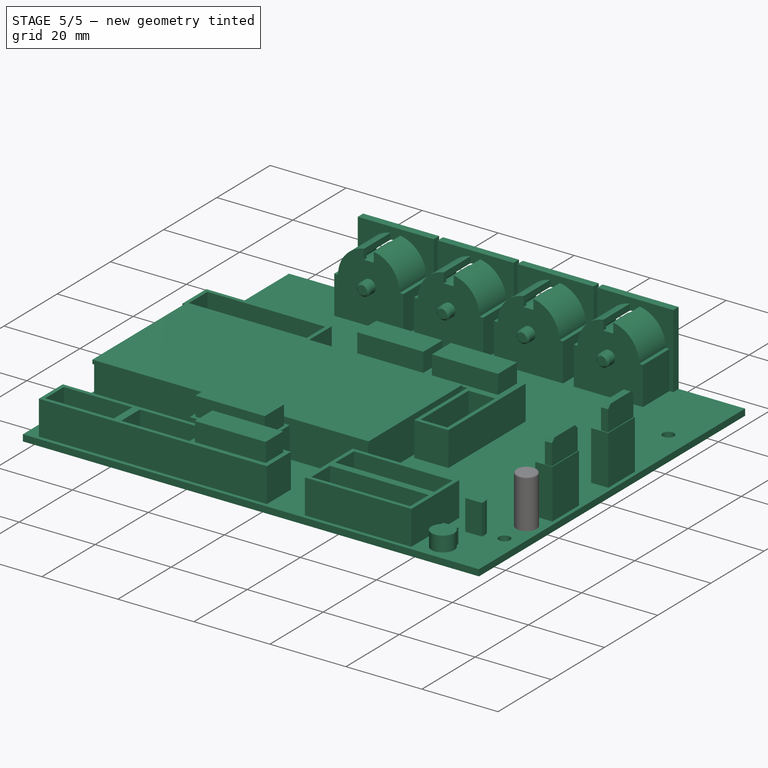
[diagram: stage 5 of 5 — iso view after this stage's code; geometry added in this stage tinted green]
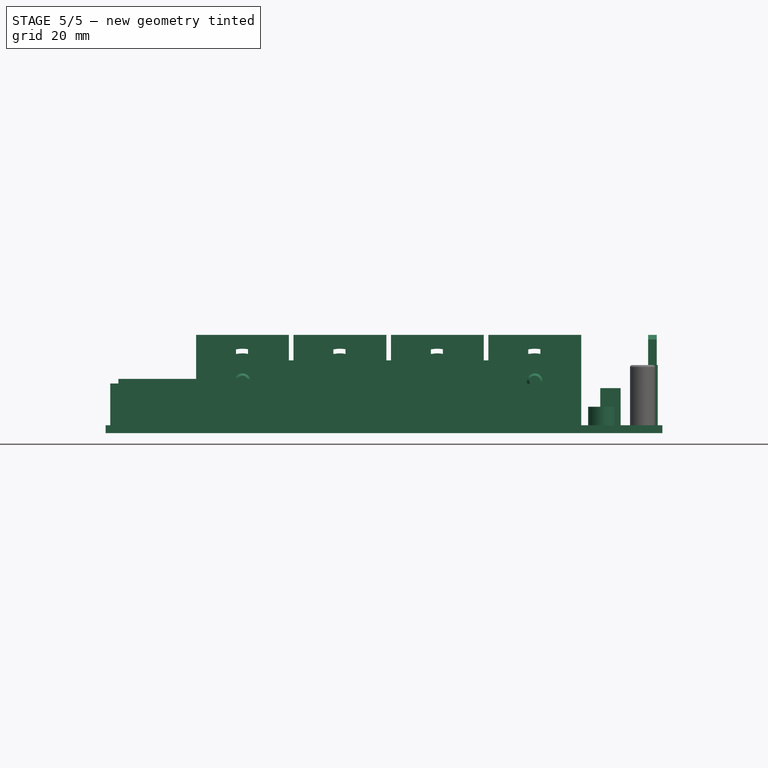
[diagram: stage 5 of 5 — front view after this stage's code; geometry added in this stage tinted green]
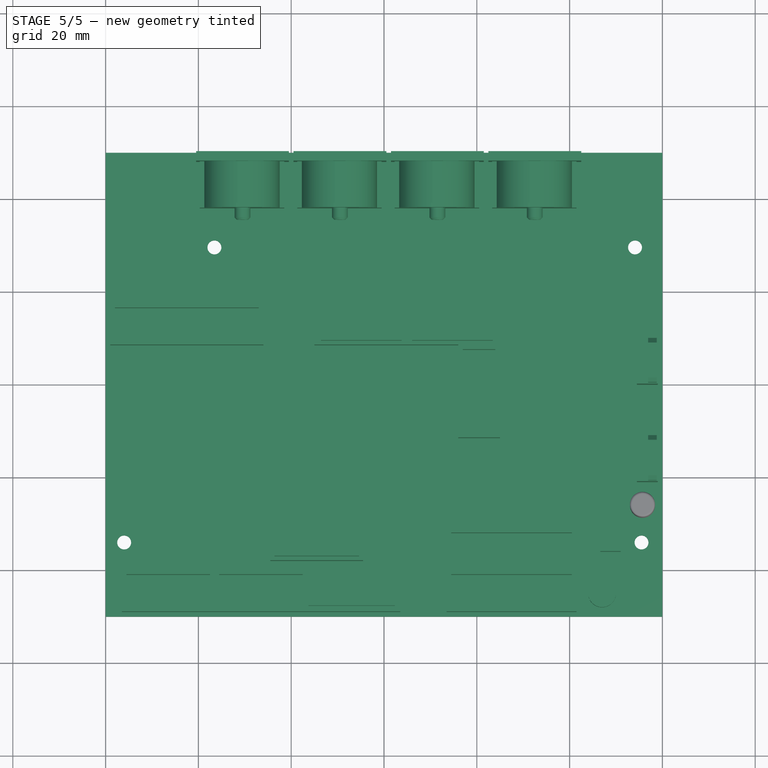
[diagram: stage 5 of 5 — top view after this stage's code; geometry added in this stage tinted green]
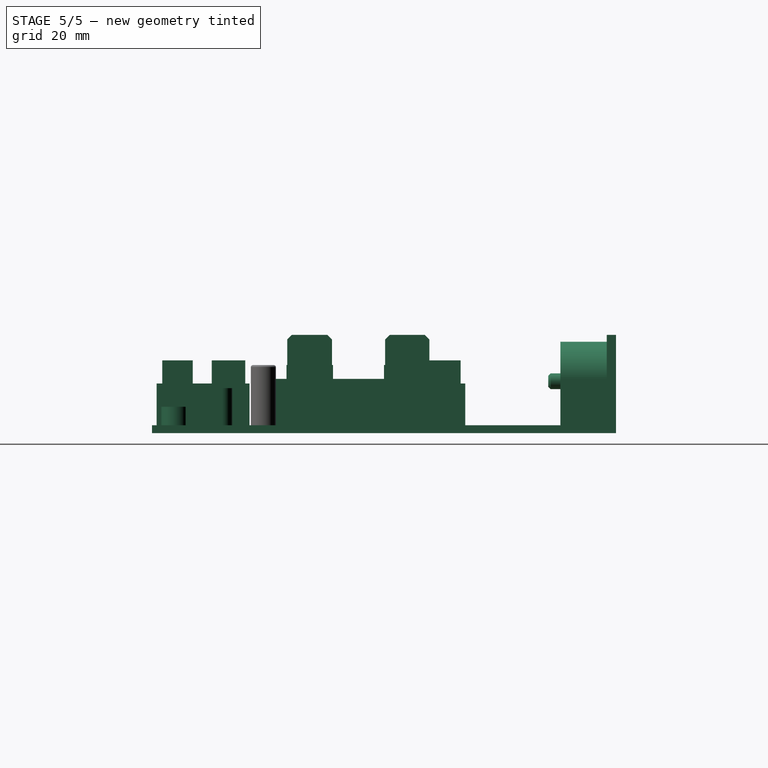
[diagram: stage 5 of 5 — right view after this stage's code; geometry added in this stage tinted green]
FEATURE [Part::Extrusion] Extrude002
  Base = -> Sketch019
  Dir = (0,0,1)
  DirMode = 2
  FaceMakerClass = Part::FaceMakerBullseye
  LengthFwd = 5
  LengthRev = 0
  Solid = true
  Symmetric = false
FEATURE [Part::Fuse] Fusion006
  Base = -> Fusion005
  Tool = -> Fillet001
FEATURE [Sketcher::SketchObject] Sketch022
  ExternalGeometry = -> [Fusion006]
  MapMode = 5
  Support = -> [Fusion006]
  sketch-geometry (4):
    g0: LineSegment StartX=51 StartY=-36 StartZ=0 EndX=46.6 EndY=-36 EndZ=0
    g1: LineSegment StartX=46.6 StartY=-36 StartZ=0 EndX=46.6 EndY=-34.9 EndZ=0
    g2: LineSegment StartX=51 StartY=-34.9 StartZ=0 EndX=51 EndY=-36 EndZ=0
    g3: ArcOfCircle CenterX=48.8 CenterY=-34.9 CenterZ=0 NormalX=0 NormalY=0 NormalZ=1 AngleXU=0 Radius=2.2 StartAngle=-9e-16 EndAngle=3.14159
  constraints (15):
    c: Coincident(g0,g1)
    c: Coincident(g2,g0)
    c: Horizontal(g0)
    c: Vertical(g1)
    c: Vertical(g2)
    c: Coincident(g2,g3)
    c: Coincident(g1,g3)
    c: Horizontal(g1,g2)
    c: Horizontal(g2,g3)
    c: Horizontal(g3,g3)
    c: Horizontal(g3,g3)
    c: Distance(g0) = 4.4
    c: Distance(g1) = 1.1
    c: Distance(g2,g-3) = 9
    c: DistanceY(g-3,g0) = 14
FEATURE [Part::Extrusion] Extrude006  label="transistor"
  Base = -> Sketch022
  Dir = (0,0,1)
  DirMode = 2
  FaceMakerClass = Part::FaceMakerBullseye
  LengthFwd = 8
  LengthRev = 0
  Solid = true
  Symmetric = false
FEATURE [Sketcher::SketchObject] Sketch023
  ExternalGeometry = -> [Fusion006]
  MapMode = 5
  Support = -> [Fusion006]
  sketch-geometry (6):
    g0: LineSegment StartX=45 StartY=-42 StartZ=0 EndX=49 EndY=-42 EndZ=0
    g1: LineSegment StartX=49 StartY=-42 StartZ=0 EndX=49 EndY=-42.7639 EndZ=0
    g2: LineSegment StartX=45 StartY=-42.7639 StartZ=0 EndX=45 EndY=-42 EndZ=0
    g3: ArcOfCircle CenterX=47 CenterY=-45 CenterZ=0 NormalX=0 NormalY=0 NormalZ=1 AngleXU=0 Radius=3 StartAngle=2.30052 EndAngle=7.12425
    g4: GeomPoint X=47 Y=-42 Z=0
    g5: GeomPoint X=47 Y=-48 Z=0
  constraints (17):
    c: Coincident(g0,g1)
    c: Coincident(g2,g0)
    c: Horizontal(g0)
    c: Vertical(g1)
    c: Vertical(g2)
    c: Coincident(g2,g3)
    c: Coincident(g1,g3)
    c: Radius(g3) = 3
    c: PointOnObject(g4,g0)
    c: PointOnObject(g5,g3)
    c: Vertical(g5,g4)
    c: DistanceY(g5,g4) = 6
    c: Vertical(g5,g3)
    c: Horizontal(g1,g2)
    c: Distance(g0) = 4
    c: Distance(g3,g-3) = 13
    c: DistanceY(g-3,g3) = 5
FEATURE [Part::Extrusion] Extrude007  label="potentiometre"
  Base = -> Sketch023
  Dir = (0,0,1)
  DirMode = 2
  FaceMakerClass = Part::FaceMakerBullseye
  LengthFwd = 4
  LengthRev = 0
  Solid = true
  Symmetric = false
FEATURE [Part::Fuse] Fusion007
  Base = -> Fusion006
  Tool = -> Extrude006
FEATURE [Part::Fuse] Fusion008
  Base = -> Fusion007
  Tool = -> Extrude007
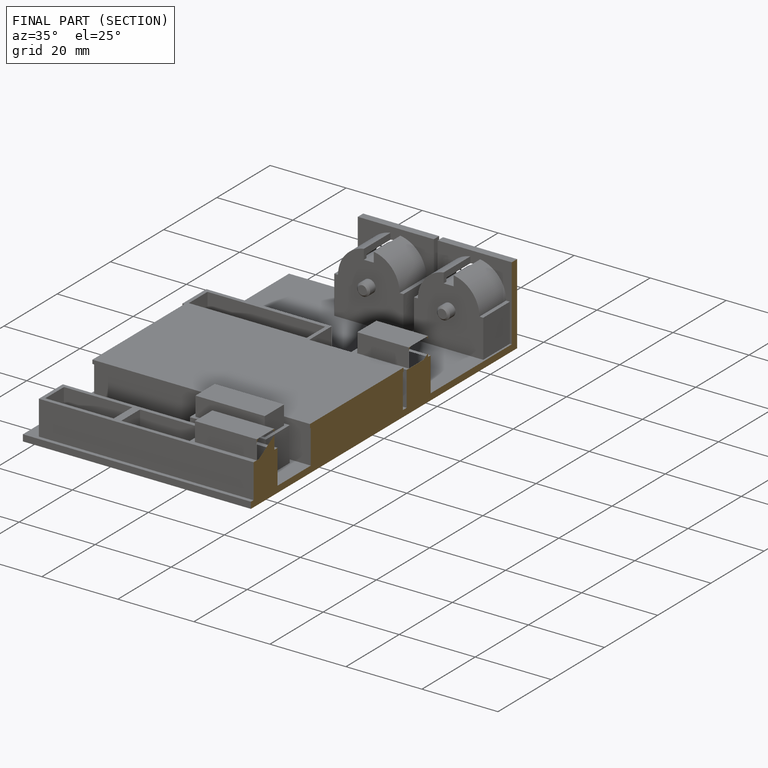
[diagram: finished part — half-section view (interior)]
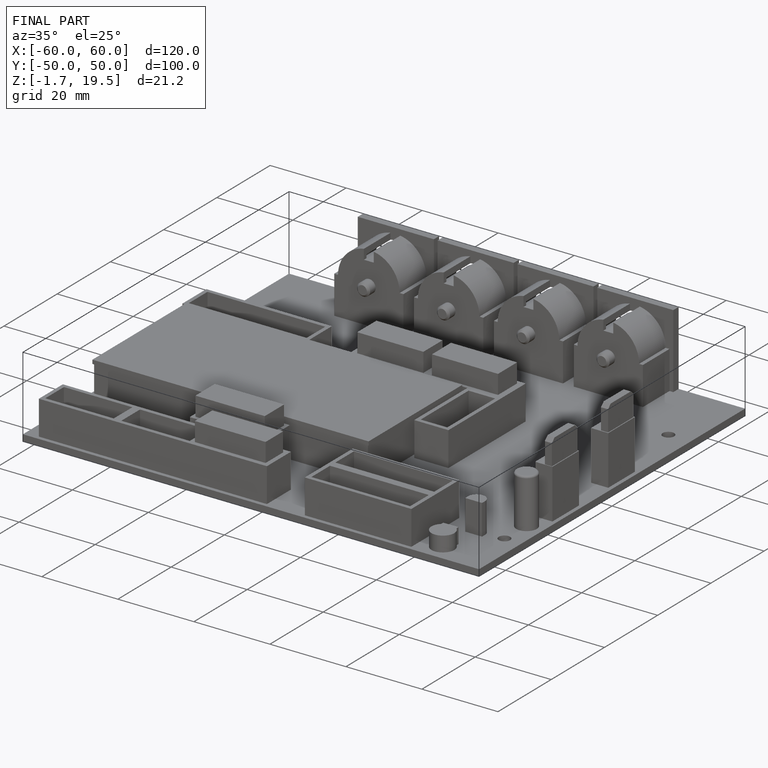
[diagram: finished part — iso view with bounding-box wireframe]
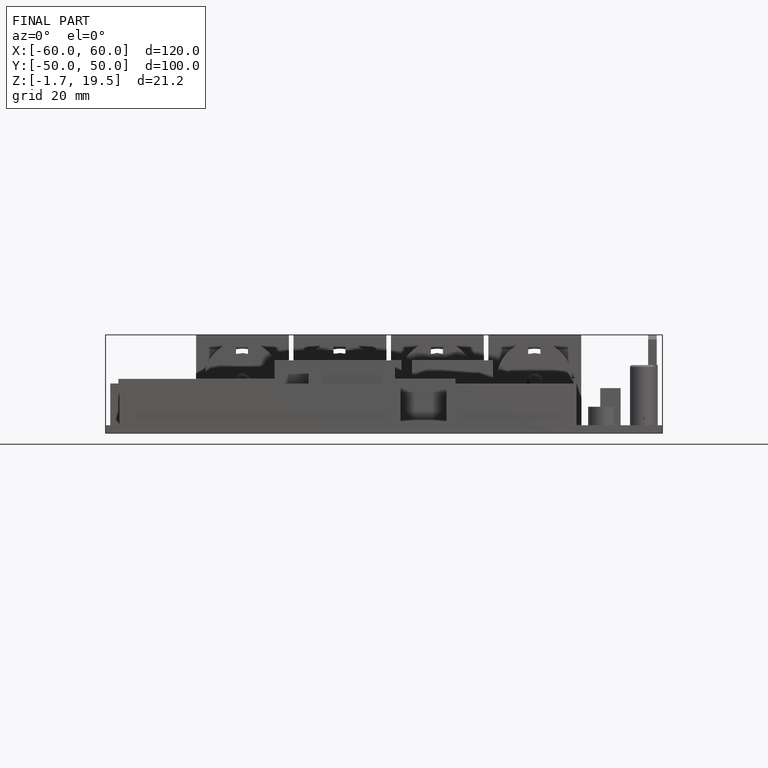
[diagram: finished part — front view with bounding-box wireframe]
